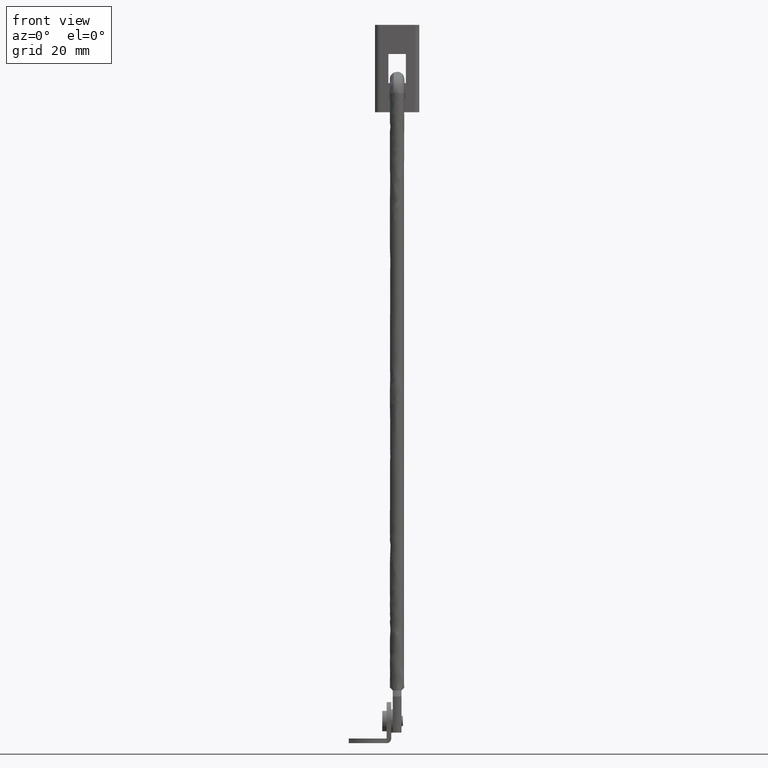
[diagram: clean part render]
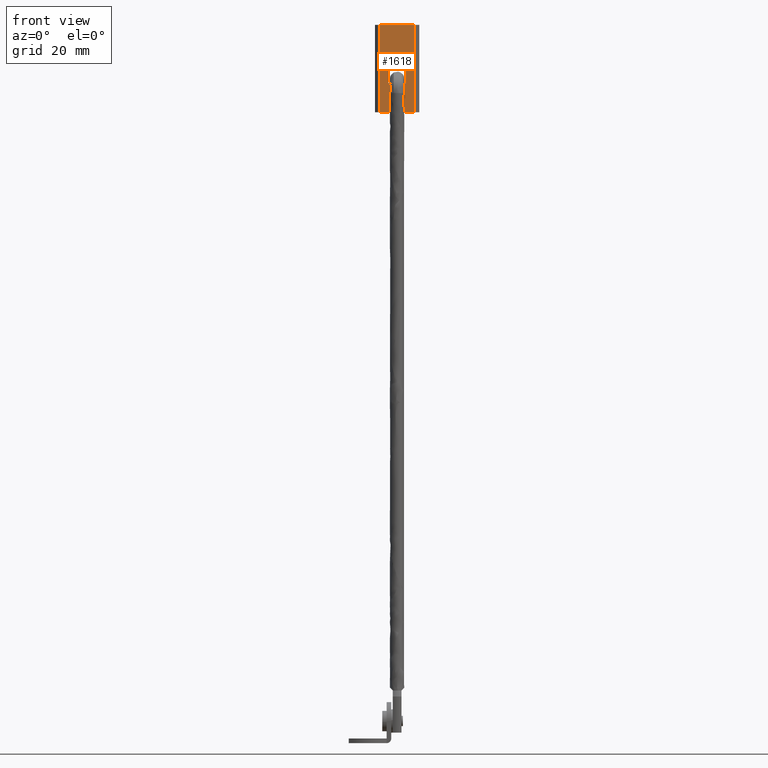
[diagram: same view with one face highlighted and labeled with its STEP entity id]
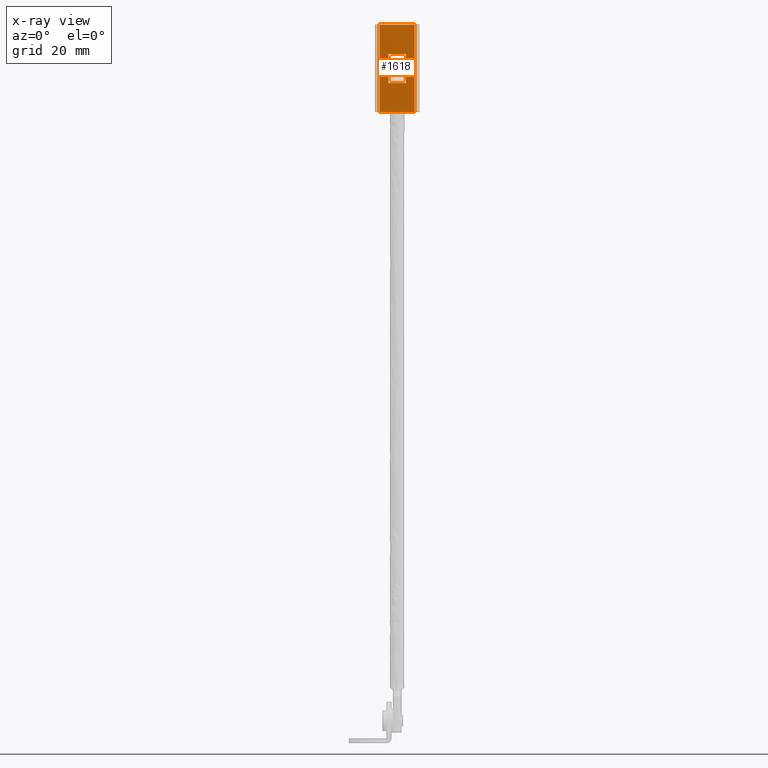
[diagram: x-ray of the same camera — body ghosted, the highlighted face saturated]
A machine part, front view. The second image highlights one B-rep face of the part: STEP entity #1618.
The next image is the same camera in x-ray: the body ghosted, the highlighted face saturated — about 0% of this face is hidden behind the body in this view.
In plain terms, the highlighted face is a freeform B-spline surface patch.
Its self-contained STEP definition (entity closure, byte-faithful):
#1178=CARTESIAN_POINT('',(13.099990999999800,2.499999999999885,236.662185999999990));
#1179=VERTEX_POINT('',#1178);
#1180=CARTESIAN_POINT('',(13.099990999999800,2.499999999999945,226.662185999999990));
#1181=VERTEX_POINT('',#1180);
#1182=CARTESIAN_POINT('',(13.099990999999800,2.499999999999885,236.662185999999990));
#1183=CARTESIAN_POINT('',(13.099990999999800,2.499999999999945,226.662185999999990));
#1184=QUASI_UNIFORM_CURVE('',1,(#1182,#1183),.UNSPECIFIED.,.F.,.U.);
#1185=EDGE_CURVE('',#1179,#1181,#1184,.T.);
#1214=CARTESIAN_POINT('',(7.099990999999790,2.499999999999945,236.662185999999990));
#1215=VERTEX_POINT('',#1214);
#1216=CARTESIAN_POINT('',(7.099990999999790,2.499999999999945,236.662185999999990));
#1217=CARTESIAN_POINT('',(13.099990999999800,2.499999999999885,236.662185999999990));
#1218=QUASI_UNIFORM_CURVE('',1,(#1216,#1217),.UNSPECIFIED.,.F.,.U.);
#1219=EDGE_CURVE('',#1215,#1179,#1218,.T.);
#1242=CARTESIAN_POINT('',(7.099990999999790,2.499999999999945,226.662185999999990));
#1243=VERTEX_POINT('',#1242);
#1244=CARTESIAN_POINT('',(7.099990999999790,2.499999999999945,226.662185999999990));
#1245=CARTESIAN_POINT('',(7.099990999999790,2.499999999999945,236.662185999999990));
#1246=QUASI_UNIFORM_CURVE('',1,(#1244,#1245),.UNSPECIFIED.,.F.,.U.);
#1247=EDGE_CURVE('',#1243,#1215,#1246,.T.);
#1270=CARTESIAN_POINT('',(13.099990999999800,2.499999999999945,226.662185999999990));
#1271=CARTESIAN_POINT('',(7.099990999999790,2.499999999999945,226.662185999999990));
#1272=QUASI_UNIFORM_CURVE('',1,(#1270,#1271),.UNSPECIFIED.,.F.,.U.);
#1273=EDGE_CURVE('',#1181,#1243,#1272,.T.);
#1301=CARTESIAN_POINT('',(4.099999999999885,2.499999999999885,216.662185999999990));
#1302=VERTEX_POINT('',#1301);
#1316=CARTESIAN_POINT('',(4.099999999999885,2.499999999999885,246.662185999999990));
#1317=VERTEX_POINT('',#1316);
#1318=CARTESIAN_POINT('',(4.099999999999885,2.499999999999885,216.662185999999990));
#1319=CARTESIAN_POINT('',(4.099999999999885,2.499999999999885,246.662185999999990));
#1320=QUASI_UNIFORM_CURVE('',1,(#1318,#1319),.UNSPECIFIED.,.F.,.U.);
#1321=EDGE_CURVE('',#1302,#1317,#1320,.T.);
#1360=CARTESIAN_POINT('',(16.099996999999899,2.499999999999885,216.662185999999990));
#1361=VERTEX_POINT('',#1360);
#1384=CARTESIAN_POINT('',(16.099996999999899,2.499999999999885,246.662185999999990));
#1385=VERTEX_POINT('',#1384);
#1399=CARTESIAN_POINT('',(16.099996999999899,2.499999999999885,246.662185999999990));
#1400=CARTESIAN_POINT('',(16.099996999999899,2.499999999999885,216.662185999999990));
#1401=QUASI_UNIFORM_CURVE('',1,(#1399,#1400),.UNSPECIFIED.,.F.,.U.);
#1402=EDGE_CURVE('',#1385,#1361,#1401,.T.);
#1460=CARTESIAN_POINT('',(16.099996999999899,2.499999999999885,246.662185999999990));
#1461=CARTESIAN_POINT('',(4.099999999999885,2.499999999999885,246.662185999999990));
#1462=QUASI_UNIFORM_CURVE('',1,(#1460,#1461),.UNSPECIFIED.,.F.,.U.);
#1463=EDGE_CURVE('',#1385,#1317,#1462,.T.);
#1474=CARTESIAN_POINT('',(16.099996999999899,2.499999999999885,216.662185999999990));
#1475=CARTESIAN_POINT('',(4.099999999999885,2.499999999999885,216.662185999999990));
#1476=QUASI_UNIFORM_CURVE('',1,(#1474,#1475),.UNSPECIFIED.,.F.,.U.);
#1477=EDGE_CURVE('',#1361,#1302,#1476,.T.);
#1601=CARTESIAN_POINT('',(3.500600103333238,2.499999999999885,248.160685660235710));
#1602=CARTESIAN_POINT('',(3.500600103333238,2.499999999999885,215.163685266880800));
#1603=CARTESIAN_POINT('',(16.699396252936548,2.499999999999885,248.160685660235710));
#1604=CARTESIAN_POINT('',(16.699396252936548,2.499999999999885,215.163685266880800));
#1605=B_SPLINE_SURFACE_WITH_KNOTS('',1,1,((#1601,#1603),(#1602,#1604)),.UNSPECIFIED.,.F.,.F.,.U.,(2,2),(2,2),(0.0,32.997000393354938),(0.0,13.198796149603311),.UNSPECIFIED.);
#1606=ORIENTED_EDGE('',*,*,#1463,.T.);
#1607=ORIENTED_EDGE('',*,*,#1321,.F.);
#1608=ORIENTED_EDGE('',*,*,#1477,.F.);
#1609=ORIENTED_EDGE('',*,*,#1402,.F.);
#1610=EDGE_LOOP('',(#1606,#1607,#1608,#1609));
#1611=FACE_OUTER_BOUND('',#1610,.T.);
#1612=ORIENTED_EDGE('',*,*,#1273,.T.);
#1613=ORIENTED_EDGE('',*,*,#1247,.T.);
#1614=ORIENTED_EDGE('',*,*,#1219,.T.);
#1615=ORIENTED_EDGE('',*,*,#1185,.T.);
#1616=EDGE_LOOP('',(#1612,#1613,#1614,#1615));
#1617=FACE_BOUND('',#1616,.T.);
#1618=ADVANCED_FACE('',(#1611,#1617),#1605,.T.);